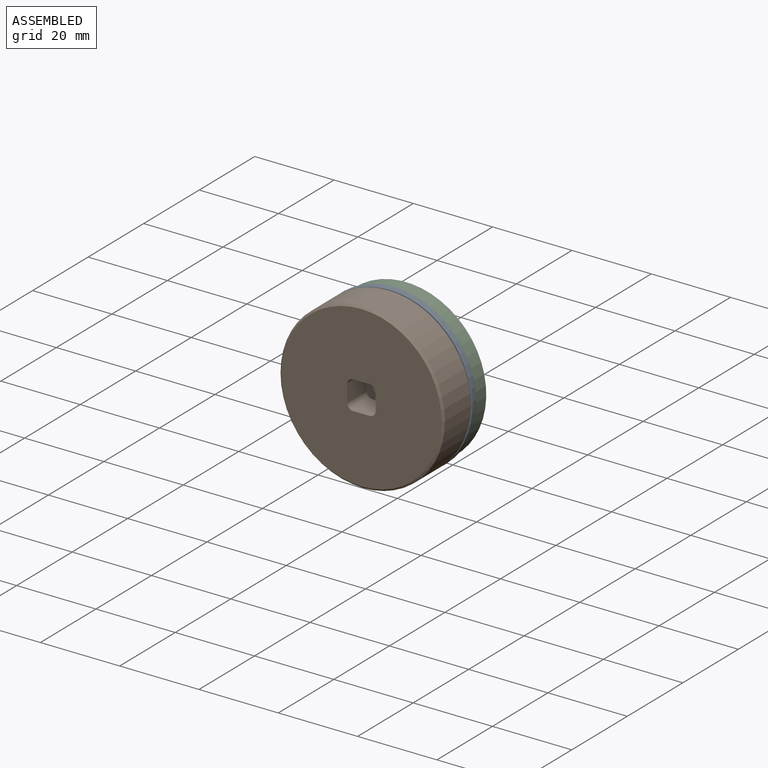
[diagram: assembled view]
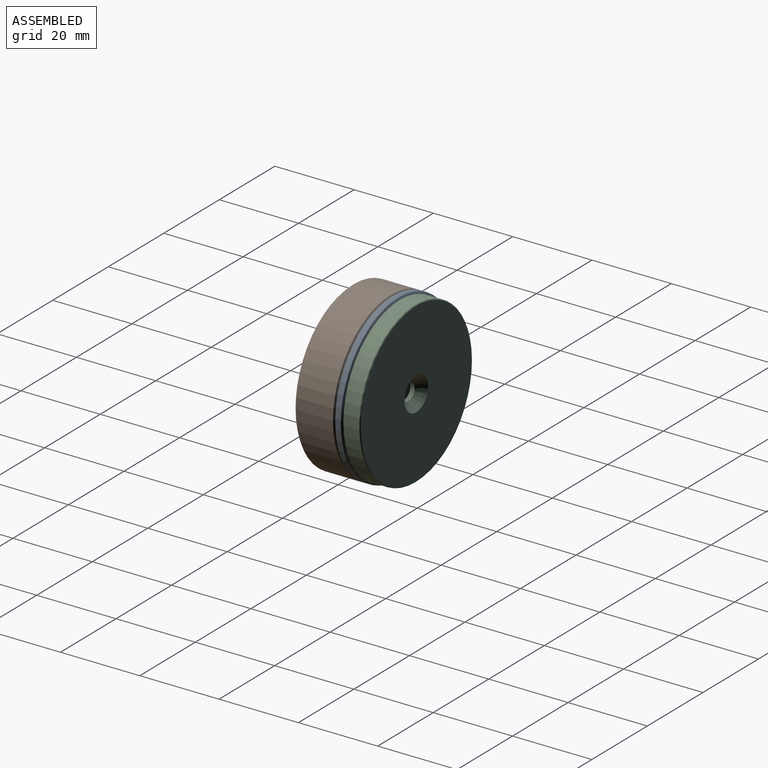
[diagram: assembled view, second angle]
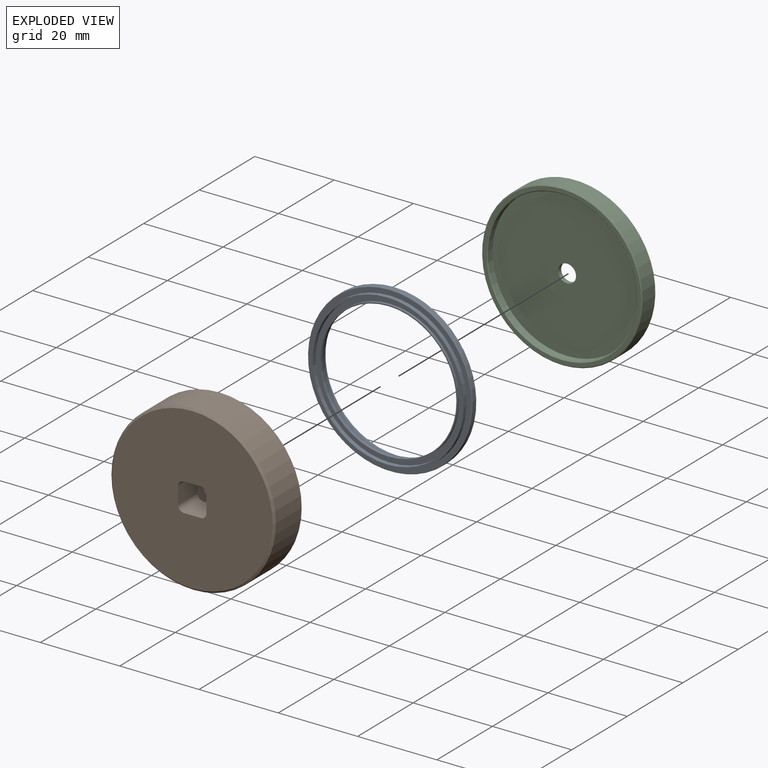
[diagram: exploded view]
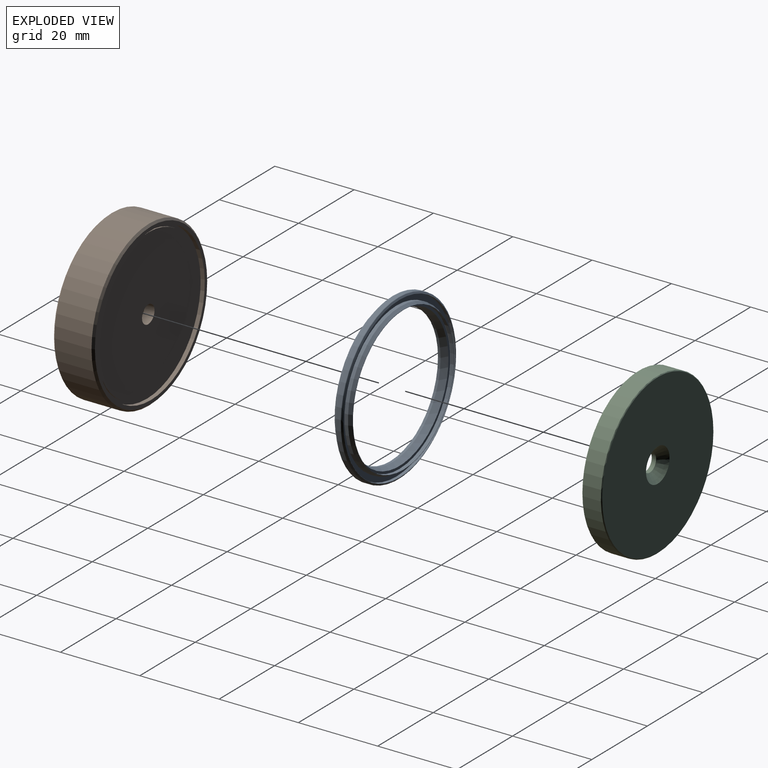
[diagram: exploded view, second angle]
ASSEMBLY  parts=3 mates=2
PART A: 22 faces, bbox 44.9x3.8x44.9 mm
  f0: cylinder r=18.75mm len=37.5mm, axis (0,1,0), area 129.6mm2, adj f1,f21
  f1: plane 38.7x38.7mm, normal (0,-1,0), area 71.8mm2, adj f0,f2
  f2: cylinder r=19.35mm len=38.7mm, axis (0,1,0), area 127.7mm2, adj f1,f3
  f3: plane 41.1x41.1mm, normal (0,-1,0), area 150.4mm2, adj f2,f4
  f4: torus R=20.55mm, axis (0,1,0), area 40.8mm2, adj f3,f5
  f5: cylinder r=20.75mm len=41.5mm, axis (0,1,0), area 155.5mm2, adj f4,f6
  f6: torus R=20.55mm, axis (0,1,0), area 25.6mm2, adj f5,f7
  f7: cone r=20.3mm half-angle=56.3deg, axis (0,-1,0), area 55.4mm2, adj f6,f8
  f8: torus R=20.28mm, axis (0,1,0), area 13.7mm2, adj f7,f9
  f9: cylinder r=20.23mm len=40.45mm, axis (0,1,0), area 96.1mm2, adj f8,f10
  f10: plane 40.45x40.45mm, normal (0,1,0), area 180.6mm2, adj f9,f11
  f11: cylinder r=18.75mm len=37.5mm, axis (0,1,0), area 106mm2, adj f10,f12
  f12: cone r=18.29mm half-angle=28.6deg, axis (0,-1,0), area 112.6mm2, adj f11,f13
  f13: plane 36.57x36.57mm, normal (0,1,0), area 9.9mm2, adj f12,f14
  f14: cylinder r=18.2mm len=36.4mm, axis (0,1,0), area 97.2mm2, adj f13,f15
  f15: cone r=18.2mm half-angle=30deg, axis (0,-1,0), area 19.9mm2, adj f14,f16
  f16: plane 36.57x36.57mm, normal (0,1,0), area 71.9mm2, adj f15,f17
  f17: cone r=17.15mm half-angle=16.9deg, axis (0,1,0), area 188.5mm2, adj f16,f18
  f18: cylinder r=17.15mm len=34.3mm, axis (0,1,0), area 70mm2, adj f17,f19
  f19: plane 34.9x34.9mm, normal (0,-1,0), area 32.6mm2, adj f18,f20
  f20: cylinder r=17.45mm len=34.9mm, axis (0,1,0), area 65.8mm2, adj f19,f21
  f21: plane 37.5x37.5mm, normal (0,-1,0), area 147.8mm2, adj f0,f20
PART B: 19 faces, bbox 41.5x10.3x41.5 mm
  f0: plane 40.45x40.45mm, normal (0,-1,0), area 1235.2mm2, adj f8,f10,f11,f12,f13,f14,f15,f16
  f1: cylinder r=2.25mm len=4.5mm, axis (0,1,0), area 36.8mm2, adj f5,f18
  f2: cylinder r=19.35mm len=38.7mm, axis (0,-1,0), area 127.7mm2, adj f3,f7
  f3: plane 38.7x38.7mm, normal (0,1,0), area 80.6mm2, adj f2,f4
  f4: cylinder r=18.68mm len=37.35mm, axis (0,-1,0), area 41.1mm2, adj f3,f5
  f5: plane 37.35x37.35mm, normal (0,1,0), area 1079.7mm2, adj f1,f4
  f6: cylinder r=20.73mm len=41.45mm, axis (0,-1,0), area 1211mm2, adj f8,f9
  f7: plane 40.45x40.45mm, normal (0,1,0), area 108.8mm2, adj f2,f9
  f8: cone r=20.23mm half-angle=45deg, axis (0,1,0), area 91mm2, adj f0,f6
  f9: cone r=20.73mm half-angle=45deg, axis (0,-1,0), area 91mm2, adj f6,f7
  f10: plane 7x4.2mm, normal (0,0,1), area 29.4mm2, adj f0,f11,f17,f18
  f11: cylinder r=1.5mm len=7mm, axis (0,-1,0), area 16.5mm2, adj f0,f10,f12,f18
  f12: plane 7x4.2mm, normal (-1,0,0), area 29.4mm2, adj f0,f11,f13,f18
  f13: cylinder r=1.5mm len=7mm, axis (0,-1,0), area 16.5mm2, adj f0,f12,f14,f18
  f14: plane 7x4.2mm, normal (0,0,-1), area 29.4mm2, adj f0,f13,f15,f18
  f15: cylinder r=1.5mm len=7mm, axis (0,-1,0), area 16.5mm2, adj f0,f14,f16,f18
  f16: plane 7x4.2mm, normal (1,0,0), area 29.4mm2, adj f0,f15,f17,f18
  f17: cylinder r=1.5mm len=7mm, axis (0,-1,0), area 16.5mm2, adj f0,f10,f16,f18
  f18: plane 7.2x7.2mm, normal (0,-1,0), area 34mm2, adj f1,f10,f11,f12,f13,f14,f15,f16
PART C: 10 faces, bbox 40.5x5x40.5 mm
  f0: plane 37.6x37.6mm, normal (0,-1,0), area 1094.5mm2, adj f1,f7
  f1: cylinder r=18.8mm len=37.6mm, axis (0,-1,0), area 200.2mm2, adj f0,f6
  f2: plane 40.05x40.05mm, normal (0,-1,0), area 125.7mm2, adj f5,f6
  f3: cylinder r=20.23mm len=40.45mm, axis (0,-1,0), area 584.6mm2, adj f5,f9
  f4: plane 40.05x40.05mm, normal (0,1,0), area 1203mm2, adj f8,f9
  f5: cone r=20.03mm half-angle=45deg, axis (0,1,0), area 35.8mm2, adj f2,f3
  f6: cone r=18.8mm half-angle=45deg, axis (0,-1,0), area 33.6mm2, adj f1,f2
  f7: cylinder r=2.25mm len=4.5mm, axis (0,1,0), area 15.6mm2, adj f0,f8
  f8: cone r=2.25mm half-angle=45deg, axis (0,1,0), area 57.8mm2, adj f4,f7
  f9: cone r=20.23mm half-angle=45deg, axis (0,-1,0), area 35.8mm2, adj f3,f4
PLACE A t=(-10.54,-10.66,4.21)mm
PLACE B t=(-8.34,-11.66,4.21)mm fixed
PLACE C t=(-8.89,-10.66,4.21)mm
MATE fastened A.f0 <-> C.f1  axis (0,1,0) through (-27.69,-10.66,4.21)mm
MATE fastened B.f2 <-> A.f0  axis (0,1,0) through (-27.69,-11.66,4.21)mm
